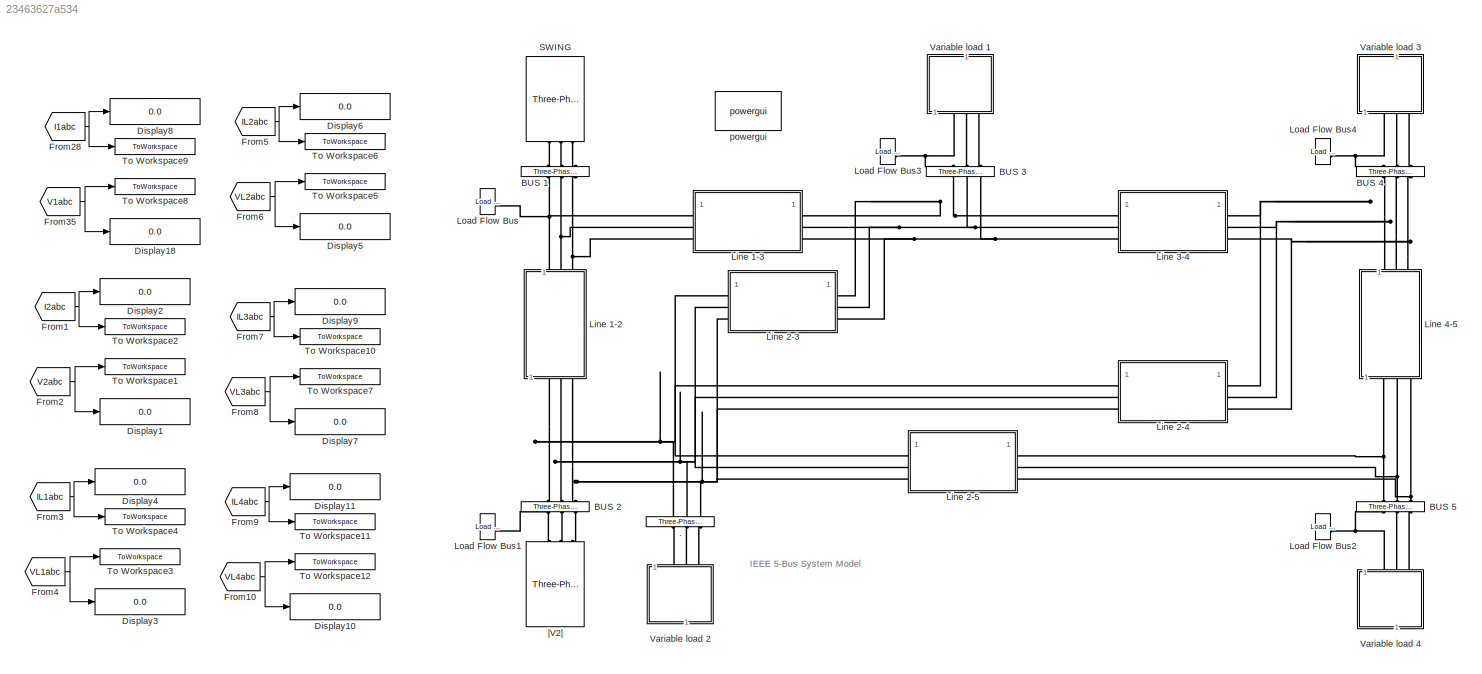
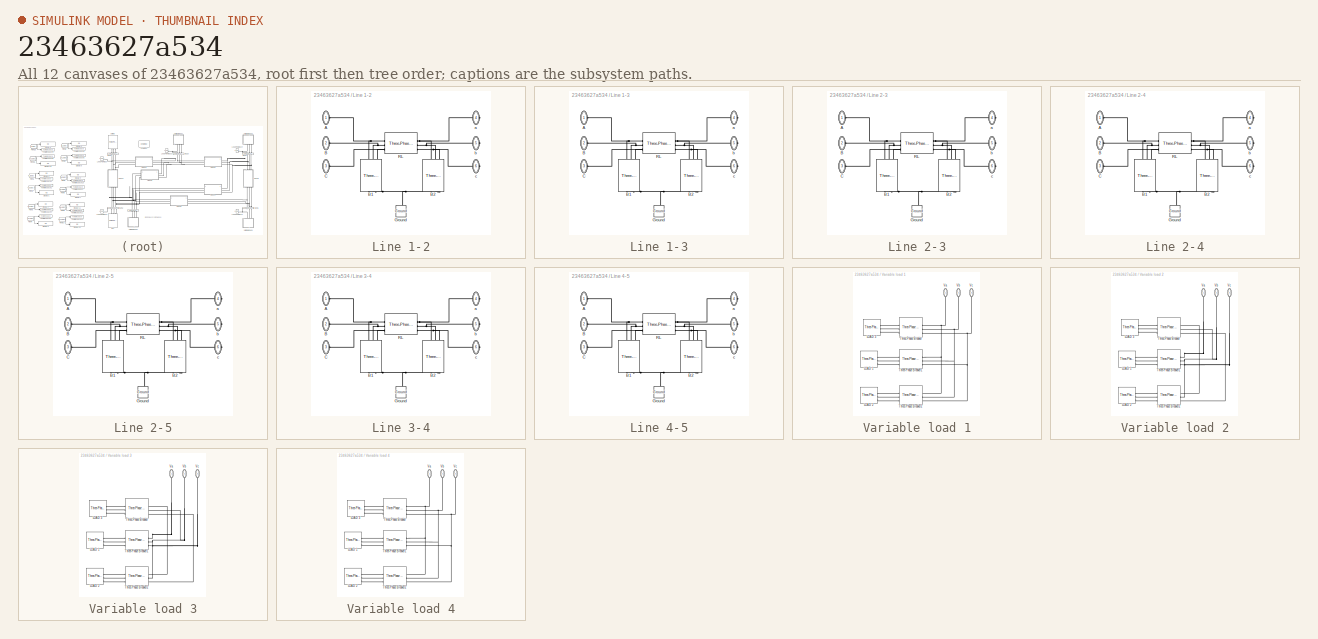
[diagram: thumbnail index - all 12 canvases of the model, root first then tree order]
MODEL slx_23463627a534
KIND model
CONFIG AbsTol = auto
CONFIG EnableMultiTasking = on
CONFIG FixedStep = auto
CONFIG MaxStep = auto
CONFIG MinStep = auto
CONFIG RelTol = 1e-3
CONFIG SampleTimeConstraint = Unconstrained
CONFIG SolverName = VariableStepAuto
CONFIG StartTime = 0.0
CONFIG StopTime = 1
BLOCK [Reference] .  REF=spsThreePhaseVIMeasurementLib/Three-Phase
V-I Measurement
  LibrarySourceBlock = sps_lib/Sensors and Measurements/Three-Phase\nV-I Measurement
  NameLocation = left
  SourceBlock = spsThreePhaseVIMeasurementLib/Three-Phase\nV-I Measurement
  SourceType = Three-Phase VI Measurement
BLOCK [Reference] BUS 1  REF=spsThreePhaseVIMeasurementLib/Three-Phase
V-I Measurement
  LibrarySourceBlock = sps_lib/Sensors and Measurements/Three-Phase\nV-I Measurement
  NameLocation = left
  SourceBlock = spsThreePhaseVIMeasurementLib/Three-Phase\nV-I Measurement
  SourceType = Three-Phase VI Measurement
BLOCK [Reference] BUS 2  REF=spsThreePhaseVIMeasurementLib/Three-Phase
V-I Measurement
  LibrarySourceBlock = sps_lib/Sensors and Measurements/Three-Phase\nV-I Measurement
  NameLocation = left
  SourceBlock = spsThreePhaseVIMeasurementLib/Three-Phase\nV-I Measurement
  SourceType = Three-Phase VI Measurement
BLOCK [Reference] BUS 3  REF=spsThreePhaseVIMeasurementLib/Three-Phase
V-I Measurement
  LibrarySourceBlock = sps_lib/Sensors and Measurements/Three-Phase\nV-I Measurement
  NameLocation = left
  SourceBlock = spsThreePhaseVIMeasurementLib/Three-Phase\nV-I Measurement
  SourceType = Three-Phase VI Measurement
BLOCK [Reference] BUS 4  REF=spsThreePhaseVIMeasurementLib/Three-Phase
V-I Measurement
  LibrarySourceBlock = sps_lib/Sensors and Measurements/Three-Phase\nV-I Measurement
  NameLocation = left
  SourceBlock = spsThreePhaseVIMeasurementLib/Three-Phase\nV-I Measurement
  SourceType = Three-Phase VI Measurement
BLOCK [Reference] BUS 5  REF=spsThreePhaseVIMeasurementLib/Three-Phase
V-I Measurement
  LibrarySourceBlock = sps_lib/Sensors and Measurements/Three-Phase\nV-I Measurement
  NameLocation = left
  SourceBlock = spsThreePhaseVIMeasurementLib/Three-Phase\nV-I Measurement
  SourceType = Three-Phase VI Measurement
BLOCK [Display] Display1
  Decimation = 1
BLOCK [Display] Display10
  Decimation = 1
BLOCK [Display] Display11
  Decimation = 1
BLOCK [Display] Display18
  Decimation = 1
BLOCK [Display] Display2
  Decimation = 1
BLOCK [Display] Display3
  Decimation = 1
BLOCK [Display] Display4
  Decimation = 1
BLOCK [Display] Display5
  Decimation = 1
BLOCK [Display] Display6
  Decimation = 1
BLOCK [Display] Display7
  Decimation = 1
BLOCK [Display] Display8
  Decimation = 1
BLOCK [Display] Display9
  Decimation = 1
BLOCK [From] From1
  GotoTag = I2abc
  TagVisibility = global
BLOCK [From] From10
  GotoTag = VL4abc
  TagVisibility = global
BLOCK [From] From2
  GotoTag = V2abc
  TagVisibility = global
BLOCK [From] From28
  GotoTag = I1abc
  TagVisibility = global
BLOCK [From] From3
  GotoTag = IL1abc
  TagVisibility = global
BLOCK [From] From35
  GotoTag = V1abc
  TagVisibility = global
BLOCK [From] From4
  GotoTag = VL1abc
  TagVisibility = global
BLOCK [From] From5
  GotoTag = IL2abc
  TagVisibility = global
BLOCK [From] From6
  GotoTag = VL2abc
  TagVisibility = global
BLOCK [From] From7
  GotoTag = IL3abc
  TagVisibility = global
BLOCK [From] From8
  GotoTag = VL3abc
  TagVisibility = global
BLOCK [From] From9
  GotoTag = IL4abc
  TagVisibility = global
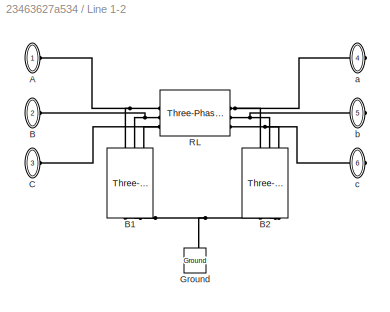
BLOCK [SubSystem] Line 1-2
  NameLocation = right
BLOCK [PMIOPort] Line 1-2/A
  NameLocation = top
  Side = Left
BLOCK [PMIOPort] Line 1-2/B
  NameLocation = top
  Port = 2
  Side = Left
BLOCK [Reference] Line 1-2/B1  REF=spsThreePhaseSeriesRLCBranchLib/Three-Phase
Series RLC Branch
  AttributesFormatString = \n
  LibrarySourceBlock = sps_lib/Passives/Three-Phase\nSeries RLC Branch
  NameLocation = left
  SourceBlock = spsThreePhaseSeriesRLCBranchLib/Three-Phase\nSeries RLC Branch
  SourceType = Three-Phase Series RLC Branch
BLOCK [Reference] Line 1-2/B2  REF=spsThreePhaseSeriesRLCBranchLib/Three-Phase
Series RLC Branch
  AttributesFormatString = \n
  LibrarySourceBlock = sps_lib/Passives/Three-Phase\nSeries RLC Branch
  NameLocation = left
  SourceBlock = spsThreePhaseSeriesRLCBranchLib/Three-Phase\nSeries RLC Branch
  SourceType = Three-Phase Series RLC Branch
BLOCK [PMIOPort] Line 1-2/C
  NameLocation = top
  Port = 3
  Side = Left
BLOCK [Reference] Line 1-2/Ground  REF=spsGroundLib/Ground
  LibrarySourceBlock = sps_lib/Utilities/Ground
  NameLocation = right
  SourceBlock = spsGroundLib/Ground
  SourceType = Ground
BLOCK [Reference] Line 1-2/RL  REF=spsThreePhaseSeriesRLCBranchLib/Three-Phase
Series RLC Branch
  AttributesFormatString = \n
  LibrarySourceBlock = sps_lib/Passives/Three-Phase\nSeries RLC Branch
  SourceBlock = spsThreePhaseSeriesRLCBranchLib/Three-Phase\nSeries RLC Branch
  SourceType = Three-Phase Series RLC Branch
BLOCK [PMIOPort] Line 1-2/a
  NameLocation = top
  Port = 4
  Side = Right
BLOCK [PMIOPort] Line 1-2/b
  NameLocation = top
  Port = 5
  Side = Right
BLOCK [PMIOPort] Line 1-2/c
  NameLocation = top
  Port = 6
  Side = Right
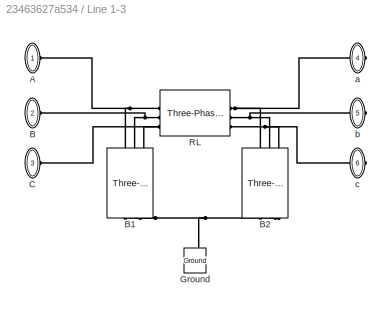
BLOCK [SubSystem] Line 1-3
BLOCK [PMIOPort] Line 1-3/A
  NameLocation = top
  Side = Left
BLOCK [PMIOPort] Line 1-3/B
  NameLocation = top
  Port = 2
  Side = Left
BLOCK [Reference] Line 1-3/B1  REF=spsThreePhaseSeriesRLCBranchLib/Three-Phase
Series RLC Branch
  AttributesFormatString = \n
  LibrarySourceBlock = sps_lib/Passives/Three-Phase\nSeries RLC Branch
  NameLocation = left
  SourceBlock = spsThreePhaseSeriesRLCBranchLib/Three-Phase\nSeries RLC Branch
  SourceType = Three-Phase Series RLC Branch
BLOCK [Reference] Line 1-3/B2  REF=spsThreePhaseSeriesRLCBranchLib/Three-Phase
Series RLC Branch
  AttributesFormatString = \n
  LibrarySourceBlock = sps_lib/Passives/Three-Phase\nSeries RLC Branch
  NameLocation = left
  SourceBlock = spsThreePhaseSeriesRLCBranchLib/Three-Phase\nSeries RLC Branch
  SourceType = Three-Phase Series RLC Branch
BLOCK [PMIOPort] Line 1-3/C
  NameLocation = top
  Port = 3
  Side = Left
BLOCK [Reference] Line 1-3/Ground  REF=spsGroundLib/Ground
  LibrarySourceBlock = sps_lib/Utilities/Ground
  NameLocation = right
  SourceBlock = spsGroundLib/Ground
  SourceType = Ground
BLOCK [Reference] Line 1-3/RL  REF=spsThreePhaseSeriesRLCBranchLib/Three-Phase
Series RLC Branch
  AttributesFormatString = \n
  LibrarySourceBlock = sps_lib/Passives/Three-Phase\nSeries RLC Branch
  SourceBlock = spsThreePhaseSeriesRLCBranchLib/Three-Phase\nSeries RLC Branch
  SourceType = Three-Phase Series RLC Branch
BLOCK [PMIOPort] Line 1-3/a
  NameLocation = top
  Port = 4
  Side = Right
BLOCK [PMIOPort] Line 1-3/b
  NameLocation = top
  Port = 5
  Side = Right
BLOCK [PMIOPort] Line 1-3/c
  NameLocation = top
  Port = 6
  Side = Right
BLOCK [SubSystem] Line 2-3
BLOCK [PMIOPort] Line 2-3/A
  NameLocation = top
  Side = Left
BLOCK [PMIOPort] Line 2-3/B
  NameLocation = top
  Port = 2
  Side = Left
BLOCK [Reference] Line 2-3/B1  REF=spsThreePhaseSeriesRLCBranchLib/Three-Phase
Series RLC Branch
  AttributesFormatString = \n
  LibrarySourceBlock = sps_lib/Passives/Three-Phase\nSeries RLC Branch
  NameLocation = left
  SourceBlock = spsThreePhaseSeriesRLCBranchLib/Three-Phase\nSeries RLC Branch
  SourceType = Three-Phase Series RLC Branch
BLOCK [Reference] Line 2-3/B2  REF=spsThreePhaseSeriesRLCBranchLib/Three-Phase
Series RLC Branch
  AttributesFormatString = \n
  LibrarySourceBlock = sps_lib/Passives/Three-Phase\nSeries RLC Branch
  NameLocation = left
  SourceBlock = spsThreePhaseSeriesRLCBranchLib/Three-Phase\nSeries RLC Branch
  SourceType = Three-Phase Series RLC Branch
BLOCK [PMIOPort] Line 2-3/C
  NameLocation = top
  Port = 3
  Side = Left
BLOCK [Reference] Line 2-3/Ground  REF=spsGroundLib/Ground
  LibrarySourceBlock = sps_lib/Utilities/Ground
  NameLocation = right
  SourceBlock = spsGroundLib/Ground
  SourceType = Ground
BLOCK [Reference] Line 2-3/RL  REF=spsThreePhaseSeriesRLCBranchLib/Three-Phase
Series RLC Branch
  AttributesFormatString = \n
  LibrarySourceBlock = sps_lib/Passives/Three-Phase\nSeries RLC Branch
  SourceBlock = spsThreePhaseSeriesRLCBranchLib/Three-Phase\nSeries RLC Branch
  SourceType = Three-Phase Series RLC Branch
BLOCK [PMIOPort] Line 2-3/a
  NameLocation = top
  Port = 4
  Side = Right
BLOCK [PMIOPort] Line 2-3/b
  NameLocation = top
  Port = 5
  Side = Right
BLOCK [PMIOPort] Line 2-3/c
  NameLocation = top
  Port = 6
  Side = Right
BLOCK [SubSystem] Line 2-4
BLOCK [PMIOPort] Line 2-4/A
  NameLocation = top
  Side = Left
BLOCK [PMIOPort] Line 2-4/B
  NameLocation = top
  Port = 2
  Side = Left
BLOCK [Reference] Line 2-4/B1  REF=spsThreePhaseSeriesRLCBranchLib/Three-Phase
Series RLC Branch
  AttributesFormatString = \n
  LibrarySourceBlock = sps_lib/Passives/Three-Phase\nSeries RLC Branch
  NameLocation = left
  SourceBlock = spsThreePhaseSeriesRLCBranchLib/Three-Phase\nSeries RLC Branch
  SourceType = Three-Phase Series RLC Branch
BLOCK [Reference] Line 2-4/B2  REF=spsThreePhaseSeriesRLCBranchLib/Three-Phase
Series RLC Branch
  AttributesFormatString = \n
  LibrarySourceBlock = sps_lib/Passives/Three-Phase\nSeries RLC Branch
  NameLocation = left
  SourceBlock = spsThreePhaseSeriesRLCBranchLib/Three-Phase\nSeries RLC Branch
  SourceType = Three-Phase Series RLC Branch
BLOCK [PMIOPort] Line 2-4/C
  NameLocation = top
  Port = 3
  Side = Left
BLOCK [Reference] Line 2-4/Ground  REF=spsGroundLib/Ground
  LibrarySourceBlock = sps_lib/Utilities/Ground
  NameLocation = right
  SourceBlock = spsGroundLib/Ground
  SourceType = Ground
BLOCK [Reference] Line 2-4/RL  REF=spsThreePhaseSeriesRLCBranchLib/Three-Phase
Series RLC Branch
  AttributesFormatString = \n
  LibrarySourceBlock = sps_lib/Passives/Three-Phase\nSeries RLC Branch
  SourceBlock = spsThreePhaseSeriesRLCBranchLib/Three-Phase\nSeries RLC Branch
  SourceType = Three-Phase Series RLC Branch
BLOCK [PMIOPort] Line 2-4/a
  NameLocation = top
  Port = 4
  Side = Right
BLOCK [PMIOPort] Line 2-4/b
  NameLocation = top
  Port = 5
  Side = Right
BLOCK [PMIOPort] Line 2-4/c
  NameLocation = top
  Port = 6
  Side = Right
BLOCK [SubSystem] Line 2-5
BLOCK [PMIOPort] Line 2-5/A
  NameLocation = top
  Side = Left
BLOCK [PMIOPort] Line 2-5/B
  NameLocation = top
  Port = 2
  Side = Left
BLOCK [Reference] Line 2-5/B1  REF=spsThreePhaseSeriesRLCBranchLib/Three-Phase
Series RLC Branch
  AttributesFormatString = \n
  LibrarySourceBlock = sps_lib/Passives/Three-Phase\nSeries RLC Branch
  NameLocation = left
  SourceBlock = spsThreePhaseSeriesRLCBranchLib/Three-Phase\nSeries RLC Branch
  SourceType = Three-Phase Series RLC Branch
BLOCK [Reference] Line 2-5/B2  REF=spsThreePhaseSeriesRLCBranchLib/Three-Phase
Series RLC Branch
  AttributesFormatString = \n
  LibrarySourceBlock = sps_lib/Passives/Three-Phase\nSeries RLC Branch
  NameLocation = left
  SourceBlock = spsThreePhaseSeriesRLCBranchLib/Three-Phase\nSeries RLC Branch
  SourceType = Three-Phase Series RLC Branch
BLOCK [PMIOPort] Line 2-5/C
  NameLocation = top
  Port = 3
  Side = Left
BLOCK [Reference] Line 2-5/Ground  REF=spsGroundLib/Ground
  LibrarySourceBlock = sps_lib/Utilities/Ground
  NameLocation = right
  SourceBlock = spsGroundLib/Ground
  SourceType = Ground
BLOCK [Reference] Line 2-5/RL  REF=spsThreePhaseSeriesRLCBranchLib/Three-Phase
Series RLC Branch
  AttributesFormatString = \n
  LibrarySourceBlock = sps_lib/Passives/Three-Phase\nSeries RLC Branch
  SourceBlock = spsThreePhaseSeriesRLCBranchLib/Three-Phase\nSeries RLC Branch
  SourceType = Three-Phase Series RLC Branch
BLOCK [PMIOPort] Line 2-5/a
  NameLocation = top
  Port = 4
  Side = Right
BLOCK [PMIOPort] Line 2-5/b
  NameLocation = top
  Port = 5
  Side = Right
BLOCK [PMIOPort] Line 2-5/c
  NameLocation = top
  Port = 6
  Side = Right
BLOCK [SubSystem] Line 3-4
BLOCK [PMIOPort] Line 3-4/A
  NameLocation = top
  Side = Left
BLOCK [PMIOPort] Line 3-4/B
  NameLocation = top
  Port = 2
  Side = Left
BLOCK [Reference] Line 3-4/B1  REF=spsThreePhaseSeriesRLCBranchLib/Three-Phase
Series RLC Branch
  AttributesFormatString = \n
  LibrarySourceBlock = sps_lib/Passives/Three-Phase\nSeries RLC Branch
  NameLocation = left
  SourceBlock = spsThreePhaseSeriesRLCBranchLib/Three-Phase\nSeries RLC Branch
  SourceType = Three-Phase Series RLC Branch
BLOCK [Reference] Line 3-4/B2  REF=spsThreePhaseSeriesRLCBranchLib/Three-Phase
Series RLC Branch
  AttributesFormatString = \n
  LibrarySourceBlock = sps_lib/Passives/Three-Phase\nSeries RLC Branch
  NameLocation = left
  SourceBlock = spsThreePhaseSeriesRLCBranchLib/Three-Phase\nSeries RLC Branch
  SourceType = Three-Phase Series RLC Branch
BLOCK [PMIOPort] Line 3-4/C
  NameLocation = top
  Port = 3
  Side = Left
BLOCK [Reference] Line 3-4/Ground  REF=spsGroundLib/Ground
  LibrarySourceBlock = sps_lib/Utilities/Ground
  NameLocation = right
  SourceBlock = spsGroundLib/Ground
  SourceType = Ground
BLOCK [Reference] Line 3-4/RL  REF=spsThreePhaseSeriesRLCBranchLib/Three-Phase
Series RLC Branch
  AttributesFormatString = \n
  LibrarySourceBlock = sps_lib/Passives/Three-Phase\nSeries RLC Branch
  SourceBlock = spsThreePhaseSeriesRLCBranchLib/Three-Phase\nSeries RLC Branch
  SourceType = Three-Phase Series RLC Branch
BLOCK [PMIOPort] Line 3-4/a
  NameLocation = top
  Port = 4
  Side = Right
BLOCK [PMIOPort] Line 3-4/b
  NameLocation = top
  Port = 5
  Side = Right
BLOCK [PMIOPort] Line 3-4/c
  NameLocation = top
  Port = 6
  Side = Right
BLOCK [SubSystem] Line 4-5
  NameLocation = right
BLOCK [PMIOPort] Line 4-5/A
  NameLocation = top
  Side = Left
BLOCK [PMIOPort] Line 4-5/B
  NameLocation = top
  Port = 2
  Side = Left
BLOCK [Reference] Line 4-5/B1  REF=spsThreePhaseSeriesRLCBranchLib/Three-Phase
Series RLC Branch
  AttributesFormatString = \n
  LibrarySourceBlock = sps_lib/Passives/Three-Phase\nSeries RLC Branch
  NameLocation = left
  SourceBlock = spsThreePhaseSeriesRLCBranchLib/Three-Phase\nSeries RLC Branch
  SourceType = Three-Phase Series RLC Branch
BLOCK [Reference] Line 4-5/B2  REF=spsThreePhaseSeriesRLCBranchLib/Three-Phase
Series RLC Branch
  AttributesFormatString = \n
  LibrarySourceBlock = sps_lib/Passives/Three-Phase\nSeries RLC Branch
  NameLocation = left
  SourceBlock = spsThreePhaseSeriesRLCBranchLib/Three-Phase\nSeries RLC Branch
  SourceType = Three-Phase Series RLC Branch
BLOCK [PMIOPort] Line 4-5/C
  NameLocation = top
  Port = 3
  Side = Left
BLOCK [Reference] Line 4-5/Ground  REF=spsGroundLib/Ground
  LibrarySourceBlock = sps_lib/Utilities/Ground
  NameLocation = right
  SourceBlock = spsGroundLib/Ground
  SourceType = Ground
BLOCK [Reference] Line 4-5/RL  REF=spsThreePhaseSeriesRLCBranchLib/Three-Phase
Series RLC Branch
  AttributesFormatString = \n
  LibrarySourceBlock = sps_lib/Passives/Three-Phase\nSeries RLC Branch
  SourceBlock = spsThreePhaseSeriesRLCBranchLib/Three-Phase\nSeries RLC Branch
  SourceType = Three-Phase Series RLC Branch
BLOCK [PMIOPort] Line 4-5/a
  NameLocation = top
  Port = 4
  Side = Right
BLOCK [PMIOPort] Line 4-5/b
  NameLocation = top
  Port = 5
  Side = Right
BLOCK [PMIOPort] Line 4-5/c
  NameLocation = top
  Port = 6
  Side = Right
BLOCK [Reference] Load Flow Bus  REF=spsLoadFlowBusLib/Load Flow Bus
  AttributesFormatString = %<ID>\n%<Vbase>V\n%<VLF>pu\n%<angleLF>deg.
  LibrarySourceBlock = sps_lib/Utilities/Load Flow Bus
  SourceBlock = spsLoadFlowBusLib/Load Flow Bus
  SourceType = Load Flow Bus
BLOCK [Reference] Load Flow Bus1  REF=spsLoadFlowBusLib/Load Flow Bus
  AttributesFormatString = %<ID>\n%<Vbase>V\n%<VLF>pu\n%<angleLF>deg.
  LibrarySourceBlock = sps_lib/Utilities/Load Flow Bus
  SourceBlock = spsLoadFlowBusLib/Load Flow Bus
  SourceType = Load Flow Bus
BLOCK [Reference] Load Flow Bus2  REF=spsLoadFlowBusLib/Load Flow Bus
  AttributesFormatString = %<ID>\n%<Vbase>V\n%<VLF>pu\n%<angleLF>deg.
  LibrarySourceBlock = sps_lib/Utilities/Load Flow Bus
  SourceBlock = spsLoadFlowBusLib/Load Flow Bus
  SourceType = Load Flow Bus
BLOCK [Reference] Load Flow Bus3  REF=spsLoadFlowBusLib/Load Flow Bus
  AttributesFormatString = %<ID>\n%<Vbase>V\n%<VLF>pu\n%<angleLF>deg.
  LibrarySourceBlock = sps_lib/Utilities/Load Flow Bus
  NameLocation = top
  SourceBlock = spsLoadFlowBusLib/Load Flow Bus
  SourceType = Load Flow Bus
BLOCK [Reference] Load Flow Bus4  REF=spsLoadFlowBusLib/Load Flow Bus
  AttributesFormatString = %<ID>\n%<Vbase>V\n%<VLF>pu\n%<angleLF>deg.
  LibrarySourceBlock = sps_lib/Utilities/Load Flow Bus
  NameLocation = top
  SourceBlock = spsLoadFlowBusLib/Load Flow Bus
  SourceType = Load Flow Bus
BLOCK [Reference] SWING  REF=spsThreePhaseSourceLib/Three-Phase Source
  LibrarySourceBlock = sps_lib/Sources/Three-Phase Source
  NameLocation = left
  SourceBlock = spsThreePhaseSourceLib/Three-Phase Source
  SourceType = Three-Phase Source
BLOCK [ToWorkspace] To Workspace1
  FixptAsFi = on
  MaxDataPoints = inf
  SampleTime = -1
  SaveFormat = Timeseries
  VariableName = V2abc
BLOCK [ToWorkspace] To Workspace10
  FixptAsFi = on
  MaxDataPoints = inf
  SampleTime = -1
  SaveFormat = Timeseries
  VariableName = IL3abc
BLOCK [ToWorkspace] To Workspace11
  FixptAsFi = on
  MaxDataPoints = inf
  SampleTime = -1
  SaveFormat = Timeseries
  VariableName = IL4abc
BLOCK [ToWorkspace] To Workspace12
  FixptAsFi = on
  MaxDataPoints = inf
  SampleTime = -1
  SaveFormat = Timeseries
  VariableName = VL4abc
BLOCK [ToWorkspace] To Workspace2
  FixptAsFi = on
  MaxDataPoints = inf
  SampleTime = -1
  SaveFormat = Timeseries
  VariableName = I2abc
BLOCK [ToWorkspace] To Workspace3
  FixptAsFi = on
  MaxDataPoints = inf
  SampleTime = -1
  SaveFormat = Timeseries
  VariableName = VL1abc
BLOCK [ToWorkspace] To Workspace4
  FixptAsFi = on
  MaxDataPoints = inf
  SampleTime = -1
  SaveFormat = Timeseries
  VariableName = IL1abc
BLOCK [ToWorkspace] To Workspace5
  FixptAsFi = on
  MaxDataPoints = inf
  SampleTime = -1
  SaveFormat = Timeseries
  VariableName = VL2abc
BLOCK [ToWorkspace] To Workspace6
  FixptAsFi = on
  MaxDataPoints = inf
  SampleTime = -1
  SaveFormat = Timeseries
  VariableName = IL2abc
BLOCK [ToWorkspace] To Workspace7
  FixptAsFi = on
  MaxDataPoints = inf
  SampleTime = -1
  SaveFormat = Timeseries
  VariableName = VL3abc
BLOCK [ToWorkspace] To Workspace8
  FixptAsFi = on
  MaxDataPoints = inf
  SampleTime = -1
  SaveFormat = Timeseries
  VariableName = V1abc
BLOCK [ToWorkspace] To Workspace9
  FixptAsFi = on
  MaxDataPoints = inf
  SampleTime = -1
  SaveFormat = Timeseries
  VariableName = I1abc
BLOCK [SubSystem] Variable load 1
  NameLocation = right
BLOCK [Reference] Variable load 1/LOAD 1  REF=spsThreePhaseSeriesRLCLoadLib/Three-Phase
Series RLC Load
  AttributesFormatString = \n
  LibrarySourceBlock = sps_lib/Passives/Three-Phase\nSeries RLC Load
  NameLocation = top
  SourceBlock = spsThreePhaseSeriesRLCLoadLib/Three-Phase\nSeries RLC Load
  SourceType = Three-Phase Series RLC Load
BLOCK [Reference] Variable load 1/LOAD 2  REF=spsThreePhaseSeriesRLCLoadLib/Three-Phase
Series RLC Load
  AttributesFormatString = \n
  LibrarySourceBlock = sps_lib/Passives/Three-Phase\nSeries RLC Load
  NameLocation = top
  SourceBlock = spsThreePhaseSeriesRLCLoadLib/Three-Phase\nSeries RLC Load
  SourceType = Three-Phase Series RLC Load
BLOCK [Reference] Variable load 1/LOAD 3  REF=spsThreePhaseSeriesRLCLoadLib/Three-Phase
Series RLC Load
  AttributesFormatString = \n
  LibrarySourceBlock = sps_lib/Passives/Three-Phase\nSeries RLC Load
  NameLocation = top
  SourceBlock = spsThreePhaseSeriesRLCLoadLib/Three-Phase\nSeries RLC Load
  SourceType = Three-Phase Series RLC Load
BLOCK [Reference] Variable load 1/Three-Phase Breaker  REF=spsThreePhaseBreakerLib/Three-Phase Breaker
  LibrarySourceBlock = sps_lib/Power Grid Elements/Three-Phase Breaker
  SourceBlock = spsThreePhaseBreakerLib/Three-Phase Breaker
  SourceType = Three-Phase Breaker
BLOCK [Reference] Variable load 1/Three-Phase Breaker1  REF=spsThreePhaseBreakerLib/Three-Phase Breaker
  LibrarySourceBlock = sps_lib/Power Grid Elements/Three-Phase Breaker
  SourceBlock = spsThreePhaseBreakerLib/Three-Phase Breaker
  SourceType = Three-Phase Breaker
BLOCK [Reference] Variable load 1/Three-Phase Breaker2  REF=spsThreePhaseBreakerLib/Three-Phase Breaker
  LibrarySourceBlock = sps_lib/Power Grid Elements/Three-Phase Breaker
  SourceBlock = spsThreePhaseBreakerLib/Three-Phase Breaker
  SourceType = Three-Phase Breaker
BLOCK [PMIOPort] Variable load 1/Va
  NameLocation = left
  Side = Left
BLOCK [PMIOPort] Variable load 1/Vb
  NameLocation = left
  Port = 2
  Side = Left
BLOCK [PMIOPort] Variable load 1/Vc
  NameLocation = left
  Port = 3
  Side = Left
BLOCK [SubSystem] Variable load 2
  NameLocation = left
BLOCK [Reference] Variable load 2/LOAD 1  REF=spsThreePhaseSeriesRLCLoadLib/Three-Phase
Series RLC Load
  AttributesFormatString = \n
  LibrarySourceBlock = sps_lib/Passives/Three-Phase\nSeries RLC Load
  NameLocation = top
  SourceBlock = spsThreePhaseSeriesRLCLoadLib/Three-Phase\nSeries RLC Load
  SourceType = Three-Phase Series RLC Load
BLOCK [Reference] Variable load 2/LOAD 2  REF=spsThreePhaseSeriesRLCLoadLib/Three-Phase
Series RLC Load
  AttributesFormatString = \n
  LibrarySourceBlock = sps_lib/Passives/Three-Phase\nSeries RLC Load
  NameLocation = top
  SourceBlock = spsThreePhaseSeriesRLCLoadLib/Three-Phase\nSeries RLC Load
  SourceType = Three-Phase Series RLC Load
BLOCK [Reference] Variable load 2/LOAD 3  REF=spsThreePhaseSeriesRLCLoadLib/Three-Phase
Series RLC Load
  AttributesFormatString = \n
  LibrarySourceBlock = sps_lib/Passives/Three-Phase\nSeries RLC Load
  NameLocation = top
  SourceBlock = spsThreePhaseSeriesRLCLoadLib/Three-Phase\nSeries RLC Load
  SourceType = Three-Phase Series RLC Load
BLOCK [Reference] Variable load 2/Three-Phase Breaker  REF=spsThreePhaseBreakerLib/Three-Phase Breaker
  LibrarySourceBlock = sps_lib/Power Grid Elements/Three-Phase Breaker
  SourceBlock = spsThreePhaseBreakerLib/Three-Phase Breaker
  SourceType = Three-Phase Breaker
BLOCK [Reference] Variable load 2/Three-Phase Breaker1  REF=spsThreePhaseBreakerLib/Three-Phase Breaker
  LibrarySourceBlock = sps_lib/Power Grid Elements/Three-Phase Breaker
  SourceBlock = spsThreePhaseBreakerLib/Three-Phase Breaker
  SourceType = Three-Phase Breaker
BLOCK [Reference] Variable load 2/Three-Phase Breaker2  REF=spsThreePhaseBreakerLib/Three-Phase Breaker
  LibrarySourceBlock = sps_lib/Power Grid Elements/Three-Phase Breaker
  SourceBlock = spsThreePhaseBreakerLib/Three-Phase Breaker
  SourceType = Three-Phase Breaker
BLOCK [PMIOPort] Variable load 2/Va
  NameLocation = left
  Side = Left
BLOCK [PMIOPort] Variable load 2/Vb
  NameLocation = left
  Port = 2
  Side = Left
BLOCK [PMIOPort] Variable load 2/Vc
  NameLocation = left
  Port = 3
  Side = Left
BLOCK [SubSystem] Variable load 3
  NameLocation = right
BLOCK [Reference] Variable load 3/LOAD 1  REF=spsThreePhaseSeriesRLCLoadLib/Three-Phase
Series RLC Load
  AttributesFormatString = \n
  LibrarySourceBlock = sps_lib/Passives/Three-Phase\nSeries RLC Load
  NameLocation = top
  SourceBlock = spsThreePhaseSeriesRLCLoadLib/Three-Phase\nSeries RLC Load
  SourceType = Three-Phase Series RLC Load
BLOCK [Reference] Variable load 3/LOAD 2  REF=spsThreePhaseSeriesRLCLoadLib/Three-Phase
Series RLC Load
  AttributesFormatString = \n
  LibrarySourceBlock = sps_lib/Passives/Three-Phase\nSeries RLC Load
  NameLocation = top
  SourceBlock = spsThreePhaseSeriesRLCLoadLib/Three-Phase\nSeries RLC Load
  SourceType = Three-Phase Series RLC Load
BLOCK [Reference] Variable load 3/LOAD 3  REF=spsThreePhaseSeriesRLCLoadLib/Three-Phase
Series RLC Load
  AttributesFormatString = \n
  LibrarySourceBlock = sps_lib/Passives/Three-Phase\nSeries RLC Load
  NameLocation = top
  SourceBlock = spsThreePhaseSeriesRLCLoadLib/Three-Phase\nSeries RLC Load
  SourceType = Three-Phase Series RLC Load
BLOCK [Reference] Variable load 3/Three-Phase Breaker  REF=spsThreePhaseBreakerLib/Three-Phase Breaker
  LibrarySourceBlock = sps_lib/Power Grid Elements/Three-Phase Breaker
  SourceBlock = spsThreePhaseBreakerLib/Three-Phase Breaker
  SourceType = Three-Phase Breaker
BLOCK [Reference] Variable load 3/Three-Phase Breaker1  REF=spsThreePhaseBreakerLib/Three-Phase Breaker
  LibrarySourceBlock = sps_lib/Power Grid Elements/Three-Phase Breaker
  SourceBlock = spsThreePhaseBreakerLib/Three-Phase Breaker
  SourceType = Three-Phase Breaker
BLOCK [Reference] Variable load 3/Three-Phase Breaker2  REF=spsThreePhaseBreakerLib/Three-Phase Breaker
  LibrarySourceBlock = sps_lib/Power Grid Elements/Three-Phase Breaker
  SourceBlock = spsThreePhaseBreakerLib/Three-Phase Breaker
  SourceType = Three-Phase Breaker
BLOCK [PMIOPort] Variable load 3/Va
  NameLocation = left
  Side = Left
BLOCK [PMIOPort] Variable load 3/Vb
  NameLocation = left
  Port = 2
  Side = Left
BLOCK [PMIOPort] Variable load 3/Vc
  NameLocation = left
  Port = 3
  Side = Left
BLOCK [SubSystem] Variable load 4
  NameLocation = left
BLOCK [Reference] Variable load 4/LOAD 1  REF=spsThreePhaseSeriesRLCLoadLib/Three-Phase
Series RLC Load
  AttributesFormatString = \n
  LibrarySourceBlock = sps_lib/Passives/Three-Phase\nSeries RLC Load
  NameLocation = top
  SourceBlock = spsThreePhaseSeriesRLCLoadLib/Three-Phase\nSeries RLC Load
  SourceType = Three-Phase Series RLC Load
BLOCK [Reference] Variable load 4/LOAD 2  REF=spsThreePhaseSeriesRLCLoadLib/Three-Phase
Series RLC Load
  AttributesFormatString = \n
  LibrarySourceBlock = sps_lib/Passives/Three-Phase\nSeries RLC Load
  NameLocation = top
  SourceBlock = spsThreePhaseSeriesRLCLoadLib/Three-Phase\nSeries RLC Load
  SourceType = Three-Phase Series RLC Load
BLOCK [Reference] Variable load 4/LOAD 3  REF=spsThreePhaseSeriesRLCLoadLib/Three-Phase
Series RLC Load
  AttributesFormatString = \n
  LibrarySourceBlock = sps_lib/Passives/Three-Phase\nSeries RLC Load
  NameLocation = top
  SourceBlock = spsThreePhaseSeriesRLCLoadLib/Three-Phase\nSeries RLC Load
  SourceType = Three-Phase Series RLC Load
BLOCK [Reference] Variable load 4/Three-Phase Breaker  REF=spsThreePhaseBreakerLib/Three-Phase Breaker
  LibrarySourceBlock = sps_lib/Power Grid Elements/Three-Phase Breaker
  SourceBlock = spsThreePhaseBreakerLib/Three-Phase Breaker
  SourceType = Three-Phase Breaker
BLOCK [Reference] Variable load 4/Three-Phase Breaker1  REF=spsThreePhaseBreakerLib/Three-Phase Breaker
  LibrarySourceBlock = sps_lib/Power Grid Elements/Three-Phase Breaker
  SourceBlock = spsThreePhaseBreakerLib/Three-Phase Breaker
  SourceType = Three-Phase Breaker
BLOCK [Reference] Variable load 4/Three-Phase Breaker2  REF=spsThreePhaseBreakerLib/Three-Phase Breaker
  LibrarySourceBlock = sps_lib/Power Grid Elements/Three-Phase Breaker
  SourceBlock = spsThreePhaseBreakerLib/Three-Phase Breaker
  SourceType = Three-Phase Breaker
BLOCK [PMIOPort] Variable load 4/Va
  NameLocation = left
  Side = Left
BLOCK [PMIOPort] Variable load 4/Vb
  NameLocation = left
  Port = 2
  Side = Left
BLOCK [PMIOPort] Variable load 4/Vc
  NameLocation = left
  Port = 3
  Side = Left
BLOCK [Reference] powergui  REF=spspowerguiLib/powergui
  LibrarySourceBlock = sps_lib/powergui
  Priority = 1
  SourceBlock = spspowerguiLib/powergui
  SourceType = PSB option menu block
BLOCK [Reference] |V2|  REF=spsThreePhaseSourceLib/Three-Phase Source
  LibrarySourceBlock = sps_lib/Sources/Three-Phase Source
  NameLocation = right
  SourceBlock = spsThreePhaseSourceLib/Three-Phase Source
  SourceType = Three-Phase Source
ANNOTATION (root): IEEE 5-Bus System Model
NET From10:1 -> Display10:1, To Workspace12:1
NET From1:1 -> Display2:1, To Workspace2:1
NET From28:1 -> Display8:1, To Workspace9:1
NET From2:1 -> Display1:1, To Workspace1:1
NET From35:1 -> Display18:1, To Workspace8:1
NET From3:1 -> Display4:1, To Workspace4:1
NET From4:1 -> Display3:1, To Workspace3:1
NET From5:1 -> Display6:1, To Workspace6:1
NET From6:1 -> Display5:1, To Workspace5:1
NET From7:1 -> Display9:1, To Workspace10:1
NET From8:1 -> Display7:1, To Workspace7:1
NET From9:1 -> Display11:1, To Workspace11:1
PNET net1: .:LConn1 -- BUS 2:LConn1 -- Line 1-2:LConn1 -- Line 2-3:LConn1 -- Line 2-4:LConn1 -- Line 2-5:LConn1
PNET net2: .:LConn2 -- BUS 2:LConn2 -- Line 1-2:LConn2 -- Line 2-3:LConn2 -- Line 2-4:LConn2 -- Line 2-5:LConn2
PNET net3: .:LConn3 -- BUS 2:LConn3 -- Line 1-2:LConn3 -- Line 2-3:LConn3 -- Line 2-4:LConn3 -- Line 2-5:LConn3
PLINE .:RConn1 -- Variable load 2:LConn1
PLINE .:RConn2 -- Variable load 2:LConn2
PLINE .:RConn3 -- Variable load 2:LConn3
PLINE BUS 1:LConn1 -- SWING:RConn1
PLINE BUS 1:LConn2 -- SWING:RConn2
PLINE BUS 1:LConn3 -- SWING:RConn3
PNET net4: BUS 1:RConn1 -- Line 1-2:RConn1 -- Line 1-3:LConn1 -- Load Flow Bus:LConn1
PNET net5: BUS 1:RConn2 -- Line 1-2:RConn2 -- Line 1-3:LConn2
PNET net6: BUS 1:RConn3 -- Line 1-2:RConn3 -- Line 1-3:LConn3
PNET net7: BUS 2:RConn1 -- Load Flow Bus1:LConn1 -- |V2|:RConn1
PLINE BUS 2:RConn2 -- |V2|:RConn2
PLINE BUS 2:RConn3 -- |V2|:RConn3
PNET net8: BUS 3:LConn1 -- Load Flow Bus3:LConn1 -- Variable load 1:LConn1
PLINE BUS 3:LConn2 -- Variable load 1:LConn2
PLINE BUS 3:LConn3 -- Variable load 1:LConn3
PNET net9: BUS 3:RConn1 -- Line 1-3:RConn1 -- Line 2-3:RConn1 -- Line 3-4:LConn1
PNET net10: BUS 3:RConn2 -- Line 1-3:RConn2 -- Line 2-3:RConn2 -- Line 3-4:LConn2
PNET net11: BUS 3:RConn3 -- Line 1-3:RConn3 -- Line 2-3:RConn3 -- Line 3-4:LConn3
PNET net12: BUS 4:LConn1 -- Load Flow Bus4:LConn1 -- Variable load 3:LConn1
PLINE BUS 4:LConn2 -- Variable load 3:LConn2
PLINE BUS 4:LConn3 -- Variable load 3:LConn3
PNET net13: BUS 4:RConn1 -- Line 2-4:RConn1 -- Line 3-4:RConn1 -- Line 4-5:RConn1
PNET net14: BUS 4:RConn2 -- Line 2-4:RConn2 -- Line 3-4:RConn2 -- Line 4-5:RConn2
PNET net15: BUS 4:RConn3 -- Line 2-4:RConn3 -- Line 3-4:RConn3 -- Line 4-5:RConn3
PNET net16: BUS 5:LConn1 -- Line 2-5:RConn1 -- Line 4-5:LConn1
PNET net17: BUS 5:LConn2 -- Line 2-5:RConn2 -- Line 4-5:LConn2
PNET net18: BUS 5:LConn3 -- Line 2-5:RConn3 -- Line 4-5:LConn3
PNET net19: BUS 5:RConn1 -- Load Flow Bus2:LConn1 -- Variable load 4:LConn1
PLINE BUS 5:RConn2 -- Variable load 4:LConn2
PLINE BUS 5:RConn3 -- Variable load 4:LConn3
PNET net20: Line 1-2/A:RConn1 -- Line 1-2/B1:LConn1 -- Line 1-2/RL:LConn1
PNET net21: Line 1-2/B1:LConn2 -- Line 1-2/B:RConn1 -- Line 1-2/RL:LConn2
PNET net22: Line 1-2/B1:LConn3 -- Line 1-2/C:RConn1 -- Line 1-2/RL:LConn3
PNET net23: Line 1-2/B1:RConn1 -- Line 1-2/B1:RConn2 -- Line 1-2/B1:RConn3 -- Line 1-2/B2:RConn1 -- Line 1-2/B2:RConn2 -- Line 1-2/B2:RConn3 -- Line 1-2/Ground:LConn1
PNET net24: Line 1-2/B2:LConn1 -- Line 1-2/RL:RConn1 -- Line 1-2/a:RConn1
PNET net25: Line 1-2/B2:LConn2 -- Line 1-2/RL:RConn2 -- Line 1-2/b:RConn1
PNET net26: Line 1-2/B2:LConn3 -- Line 1-2/RL:RConn3 -- Line 1-2/c:RConn1
PNET net27: Line 1-3/A:RConn1 -- Line 1-3/B1:LConn1 -- Line 1-3/RL:LConn1
PNET net28: Line 1-3/B1:LConn2 -- Line 1-3/B:RConn1 -- Line 1-3/RL:LConn2
PNET net29: Line 1-3/B1:LConn3 -- Line 1-3/C:RConn1 -- Line 1-3/RL:LConn3
PNET net30: Line 1-3/B1:RConn1 -- Line 1-3/B1:RConn2 -- Line 1-3/B1:RConn3 -- Line 1-3/B2:RConn1 -- Line 1-3/B2:RConn2 -- Line 1-3/B2:RConn3 -- Line 1-3/Ground:LConn1
PNET net31: Line 1-3/B2:LConn1 -- Line 1-3/RL:RConn1 -- Line 1-3/a:RConn1
PNET net32: Line 1-3/B2:LConn2 -- Line 1-3/RL:RConn2 -- Line 1-3/b:RConn1
PNET net33: Line 1-3/B2:LConn3 -- Line 1-3/RL:RConn3 -- Line 1-3/c:RConn1
PNET net34: Line 2-3/A:RConn1 -- Line 2-3/B1:LConn1 -- Line 2-3/RL:LConn1
PNET net35: Line 2-3/B1:LConn2 -- Line 2-3/B:RConn1 -- Line 2-3/RL:LConn2
PNET net36: Line 2-3/B1:LConn3 -- Line 2-3/C:RConn1 -- Line 2-3/RL:LConn3
PNET net37: Line 2-3/B1:RConn1 -- Line 2-3/B1:RConn2 -- Line 2-3/B1:RConn3 -- Line 2-3/B2:RConn1 -- Line 2-3/B2:RConn2 -- Line 2-3/B2:RConn3 -- Line 2-3/Ground:LConn1
PNET net38: Line 2-3/B2:LConn1 -- Line 2-3/RL:RConn1 -- Line 2-3/a:RConn1
PNET net39: Line 2-3/B2:LConn2 -- Line 2-3/RL:RConn2 -- Line 2-3/b:RConn1
PNET net40: Line 2-3/B2:LConn3 -- Line 2-3/RL:RConn3 -- Line 2-3/c:RConn1
PNET net41: Line 2-4/A:RConn1 -- Line 2-4/B1:LConn1 -- Line 2-4/RL:LConn1
PNET net42: Line 2-4/B1:LConn2 -- Line 2-4/B:RConn1 -- Line 2-4/RL:LConn2
PNET net43: Line 2-4/B1:LConn3 -- Line 2-4/C:RConn1 -- Line 2-4/RL:LConn3
PNET net44: Line 2-4/B1:RConn1 -- Line 2-4/B1:RConn2 -- Line 2-4/B1:RConn3 -- Line 2-4/B2:RConn1 -- Line 2-4/B2:RConn2 -- Line 2-4/B2:RConn3 -- Line 2-4/Ground:LConn1
PNET net45: Line 2-4/B2:LConn1 -- Line 2-4/RL:RConn1 -- Line 2-4/a:RConn1
PNET net46: Line 2-4/B2:LConn2 -- Line 2-4/RL:RConn2 -- Line 2-4/b:RConn1
PNET net47: Line 2-4/B2:LConn3 -- Line 2-4/RL:RConn3 -- Line 2-4/c:RConn1
PNET net48: Line 2-5/A:RConn1 -- Line 2-5/B1:LConn1 -- Line 2-5/RL:LConn1
PNET net49: Line 2-5/B1:LConn2 -- Line 2-5/B:RConn1 -- Line 2-5/RL:LConn2
PNET net50: Line 2-5/B1:LConn3 -- Line 2-5/C:RConn1 -- Line 2-5/RL:LConn3
PNET net51: Line 2-5/B1:RConn1 -- Line 2-5/B1:RConn2 -- Line 2-5/B1:RConn3 -- Line 2-5/B2:RConn1 -- Line 2-5/B2:RConn2 -- Line 2-5/B2:RConn3 -- Line 2-5/Ground:LConn1
PNET net52: Line 2-5/B2:LConn1 -- Line 2-5/RL:RConn1 -- Line 2-5/a:RConn1
PNET net53: Line 2-5/B2:LConn2 -- Line 2-5/RL:RConn2 -- Line 2-5/b:RConn1
PNET net54: Line 2-5/B2:LConn3 -- Line 2-5/RL:RConn3 -- Line 2-5/c:RConn1
PNET net55: Line 3-4/A:RConn1 -- Line 3-4/B1:LConn1 -- Line 3-4/RL:LConn1
PNET net56: Line 3-4/B1:LConn2 -- Line 3-4/B:RConn1 -- Line 3-4/RL:LConn2
PNET net57: Line 3-4/B1:LConn3 -- Line 3-4/C:RConn1 -- Line 3-4/RL:LConn3
PNET net58: Line 3-4/B1:RConn1 -- Line 3-4/B1:RConn2 -- Line 3-4/B1:RConn3 -- Line 3-4/B2:RConn1 -- Line 3-4/B2:RConn2 -- Line 3-4/B2:RConn3 -- Line 3-4/Ground:LConn1
PNET net59: Line 3-4/B2:LConn1 -- Line 3-4/RL:RConn1 -- Line 3-4/a:RConn1
PNET net60: Line 3-4/B2:LConn2 -- Line 3-4/RL:RConn2 -- Line 3-4/b:RConn1
PNET net61: Line 3-4/B2:LConn3 -- Line 3-4/RL:RConn3 -- Line 3-4/c:RConn1
PNET net62: Line 4-5/A:RConn1 -- Line 4-5/B1:LConn1 -- Line 4-5/RL:LConn1
PNET net63: Line 4-5/B1:LConn2 -- Line 4-5/B:RConn1 -- Line 4-5/RL:LConn2
PNET net64: Line 4-5/B1:LConn3 -- Line 4-5/C:RConn1 -- Line 4-5/RL:LConn3
PNET net65: Line 4-5/B1:RConn1 -- Line 4-5/B1:RConn2 -- Line 4-5/B1:RConn3 -- Line 4-5/B2:RConn1 -- Line 4-5/B2:RConn2 -- Line 4-5/B2:RConn3 -- Line 4-5/Ground:LConn1
PNET net66: Line 4-5/B2:LConn1 -- Line 4-5/RL:RConn1 -- Line 4-5/a:RConn1
PNET net67: Line 4-5/B2:LConn2 -- Line 4-5/RL:RConn2 -- Line 4-5/b:RConn1
PNET net68: Line 4-5/B2:LConn3 -- Line 4-5/RL:RConn3 -- Line 4-5/c:RConn1
PLINE Variable load 1/LOAD 1:LConn1 -- Variable load 1/Three-Phase Breaker1:LConn1
PLINE Variable load 1/LOAD 1:LConn2 -- Variable load 1/Three-Phase Breaker1:LConn2
PLINE Variable load 1/LOAD 1:LConn3 -- Variable load 1/Three-Phase Breaker1:LConn3
PLINE Variable load 1/LOAD 2:LConn1 -- Variable load 1/Three-Phase Breaker2:LConn1
PLINE Variable load 1/LOAD 2:LConn2 -- Variable load 1/Three-Phase Breaker2:LConn2
PLINE Variable load 1/LOAD 2:LConn3 -- Variable load 1/Three-Phase Breaker2:LConn3
PLINE Variable load 1/LOAD 3:LConn1 -- Variable load 1/Three-Phase Breaker:LConn1
PLINE Variable load 1/LOAD 3:LConn2 -- Variable load 1/Three-Phase Breaker:LConn2
PLINE Variable load 1/LOAD 3:LConn3 -- Variable load 1/Three-Phase Breaker:LConn3
PNET net69: Variable load 1/Three-Phase Breaker1:RConn1 -- Variable load 1/Three-Phase Breaker2:RConn1 -- Variable load 1/Three-Phase Breaker:RConn1 -- Variable load 1/Va:RConn1
PNET net70: Variable load 1/Three-Phase Breaker1:RConn2 -- Variable load 1/Three-Phase Breaker2:RConn2 -- Variable load 1/Three-Phase Breaker:RConn2 -- Variable load 1/Vb:RConn1
PNET net71: Variable load 1/Three-Phase Breaker1:RConn3 -- Variable load 1/Three-Phase Breaker2:RConn3 -- Variable load 1/Three-Phase Breaker:RConn3 -- Variable load 1/Vc:RConn1
PLINE Variable load 2/LOAD 1:LConn1 -- Variable load 2/Three-Phase Breaker1:LConn1
PLINE Variable load 2/LOAD 1:LConn2 -- Variable load 2/Three-Phase Breaker1:LConn2
PLINE Variable load 2/LOAD 1:LConn3 -- Variable load 2/Three-Phase Breaker1:LConn3
PLINE Variable load 2/LOAD 2:LConn1 -- Variable load 2/Three-Phase Breaker2:LConn1
PLINE Variable load 2/LOAD 2:LConn2 -- Variable load 2/Three-Phase Breaker2:LConn2
PLINE Variable load 2/LOAD 2:LConn3 -- Variable load 2/Three-Phase Breaker2:LConn3
PLINE Variable load 2/LOAD 3:LConn1 -- Variable load 2/Three-Phase Breaker:LConn1
PLINE Variable load 2/LOAD 3:LConn2 -- Variable load 2/Three-Phase Breaker:LConn2
PLINE Variable load 2/LOAD 3:LConn3 -- Variable load 2/Three-Phase Breaker:LConn3
PNET net72: Variable load 2/Three-Phase Breaker1:RConn1 -- Variable load 2/Three-Phase Breaker2:RConn1 -- Variable load 2/Three-Phase Breaker:RConn1 -- Variable load 2/Va:RConn1
PNET net73: Variable load 2/Three-Phase Breaker1:RConn2 -- Variable load 2/Three-Phase Breaker2:RConn2 -- Variable load 2/Three-Phase Breaker:RConn2 -- Variable load 2/Vb:RConn1
PNET net74: Variable load 2/Three-Phase Breaker1:RConn3 -- Variable load 2/Three-Phase Breaker2:RConn3 -- Variable load 2/Three-Phase Breaker:RConn3 -- Variable load 2/Vc:RConn1
PLINE Variable load 3/LOAD 1:LConn1 -- Variable load 3/Three-Phase Breaker1:LConn1
PLINE Variable load 3/LOAD 1:LConn2 -- Variable load 3/Three-Phase Breaker1:LConn2
PLINE Variable load 3/LOAD 1:LConn3 -- Variable load 3/Three-Phase Breaker1:LConn3
PLINE Variable load 3/LOAD 2:LConn1 -- Variable load 3/Three-Phase Breaker2:LConn1
PLINE Variable load 3/LOAD 2:LConn2 -- Variable load 3/Three-Phase Breaker2:LConn2
PLINE Variable load 3/LOAD 2:LConn3 -- Variable load 3/Three-Phase Breaker2:LConn3
PLINE Variable load 3/LOAD 3:LConn1 -- Variable load 3/Three-Phase Breaker:LConn1
PLINE Variable load 3/LOAD 3:LConn2 -- Variable load 3/Three-Phase Breaker:LConn2
PLINE Variable load 3/LOAD 3:LConn3 -- Variable load 3/Three-Phase Breaker:LConn3
PNET net75: Variable load 3/Three-Phase Breaker1:RConn1 -- Variable load 3/Three-Phase Breaker2:RConn1 -- Variable load 3/Three-Phase Breaker:RConn1 -- Variable load 3/Va:RConn1
PNET net76: Variable load 3/Three-Phase Breaker1:RConn2 -- Variable load 3/Three-Phase Breaker2:RConn2 -- Variable load 3/Three-Phase Breaker:RConn2 -- Variable load 3/Vb:RConn1
PNET net77: Variable load 3/Three-Phase Breaker1:RConn3 -- Variable load 3/Three-Phase Breaker2:RConn3 -- Variable load 3/Three-Phase Breaker:RConn3 -- Variable load 3/Vc:RConn1
PLINE Variable load 4/LOAD 1:LConn1 -- Variable load 4/Three-Phase Breaker1:LConn1
PLINE Variable load 4/LOAD 1:LConn2 -- Variable load 4/Three-Phase Breaker1:LConn2
PLINE Variable load 4/LOAD 1:LConn3 -- Variable load 4/Three-Phase Breaker1:LConn3
PLINE Variable load 4/LOAD 2:LConn1 -- Variable load 4/Three-Phase Breaker2:LConn1
PLINE Variable load 4/LOAD 2:LConn2 -- Variable load 4/Three-Phase Breaker2:LConn2
PLINE Variable load 4/LOAD 2:LConn3 -- Variable load 4/Three-Phase Breaker2:LConn3
PLINE Variable load 4/LOAD 3:LConn1 -- Variable load 4/Three-Phase Breaker:LConn1
PLINE Variable load 4/LOAD 3:LConn2 -- Variable load 4/Three-Phase Breaker:LConn2
PLINE Variable load 4/LOAD 3:LConn3 -- Variable load 4/Three-Phase Breaker:LConn3
PNET net78: Variable load 4/Three-Phase Breaker1:RConn1 -- Variable load 4/Three-Phase Breaker2:RConn1 -- Variable load 4/Three-Phase Breaker:RConn1 -- Variable load 4/Va:RConn1
PNET net79: Variable load 4/Three-Phase Breaker1:RConn2 -- Variable load 4/Three-Phase Breaker2:RConn2 -- Variable load 4/Three-Phase Breaker:RConn2 -- Variable load 4/Vb:RConn1
PNET net80: Variable load 4/Three-Phase Breaker1:RConn3 -- Variable load 4/Three-Phase Breaker2:RConn3 -- Variable load 4/Three-Phase Breaker:RConn3 -- Variable load 4/Vc:RConn1
note: NET lines group one-source signal fan-out (src -> all destinations, sorted); 1:1 wires keep LINE; PNET lines group multi-terminal physical nets as a canonical sorted terminal list (undirected conserving connections); 2-terminal nets keep the pairwise PLINE form
